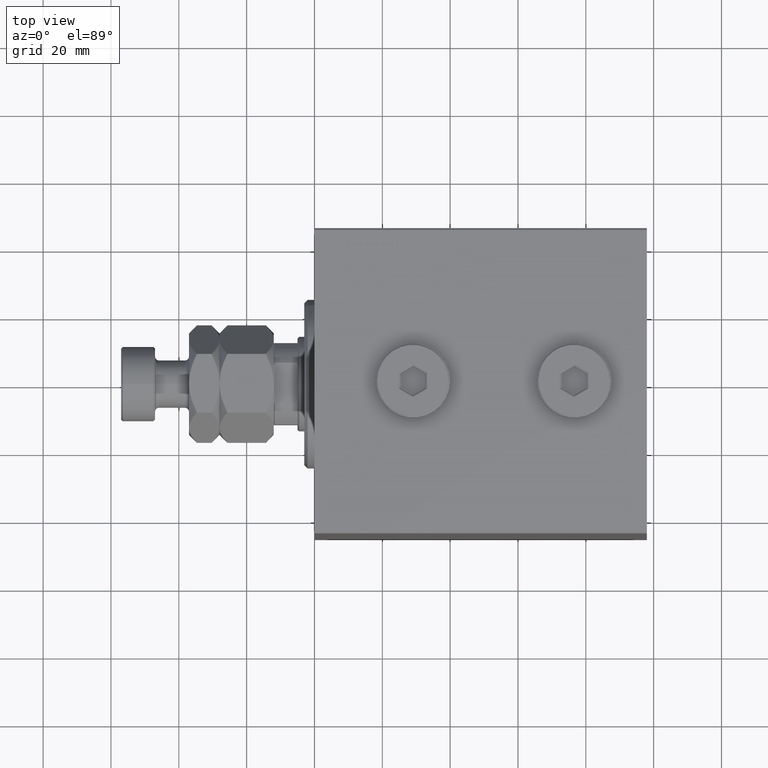
[diagram: clean part render]
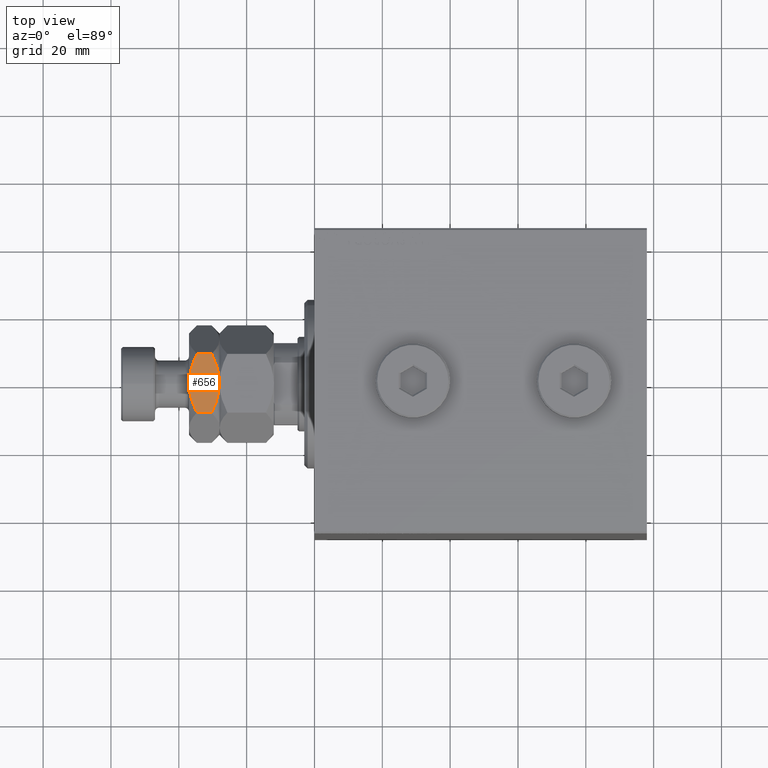
[diagram: same view with one face highlighted and labeled with its STEP entity id]
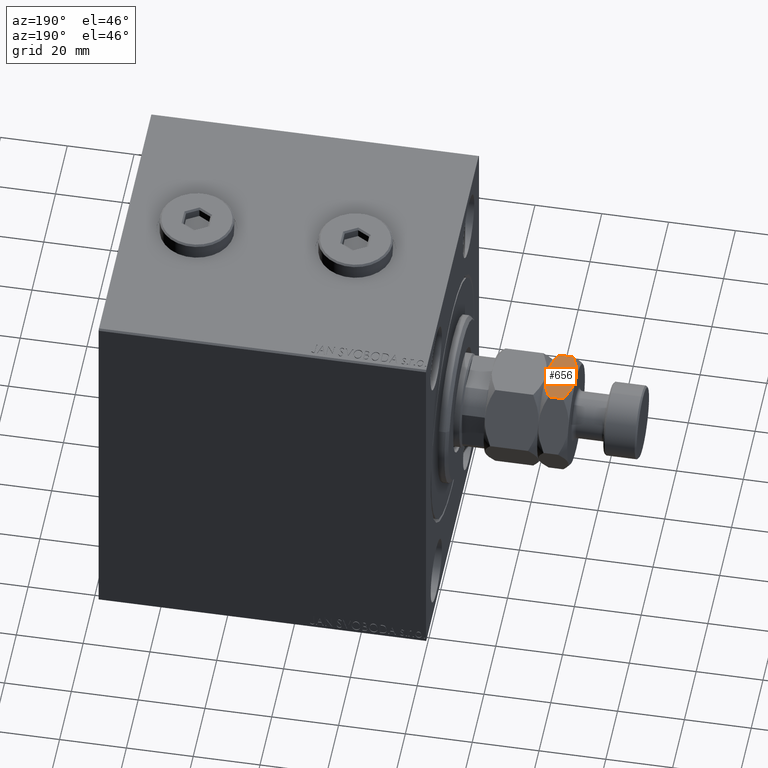
[diagram: same view with one face highlighted and labeled with its STEP entity id]
A machine part, top view. The second image highlights one B-rep face of the part: STEP entity #656.
A second angle (auxiliary view) of the same face is appended — the face is thin or edge-on in the first view.
In plain terms, the highlighted planar face has unit normal (-0, -0, -1).
Its self-contained STEP definition (entity closure, byte-faithful):
#614 = PLANE ( 'NONE',  #24984 ) ;
#656 = ADVANCED_FACE ( 'NONE', ( #22142 ), #614, .F. ) ;
#1524 = CARTESIAN_POINT ( 'NONE',  ( 14.99999999999999645, 3.737365789271271943, 24.55689843594664268 ) ) ;
#3028 = LINE ( 'NONE', #21013, #7926 ) ;
#4088 = CARTESIAN_POINT ( 'NONE',  ( 14.99999999999999645, 7.303107243978802288, 17.67096152142570986 ) ) ;
#4886 = CARTESIAN_POINT ( 'NONE',  ( 15.00000000000000178, -4.814853579356896063, 24.25000369044311199 ) ) ;
#5072 = CARTESIAN_POINT ( 'NONE',  ( 14.99999999999999822, 5.180699559534207133, 24.14562739175687867 ) ) ;
#5071 = CARTESIAN_POINT ( 'NONE',  ( 14.99999999999999822, -1.517610682399678002, 16.07187944091290888 ) ) ;
#5299 = CARTESIAN_POINT ( 'NONE',  ( 14.99999999999999645, -5.180699559534208021, 16.85437260824312844 ) ) ;
#5315 = ORIENTED_EDGE ( 'NONE', *, *, #14109, .F. ) ;
#6620 = EDGE_CURVE ( 'NONE', #27401, #22684, #17478, .T. ) ;
#7358 = DIRECTION ( 'NONE',  ( -0.000000000000000000, -0.000000000000000000, -1.000000000000000000 ) ) ;
#7926 = VECTOR ( 'NONE', #27649, 1000.000000000000000 ) ;
#8603 = CARTESIAN_POINT ( 'NONE',  ( 14.99999999999999645, 5.892768039091680343, 23.89692361009772625 ) ) ;
#8834 = CARTESIAN_POINT ( 'NONE',  ( 14.99999999999999822, 8.660254037844385522, 22.67949192431123961 ) ) ;
#10216 = CARTESIAN_POINT ( 'NONE',  ( 15.00000000000000178, -5.892768039091683008, 17.10307638990227730 ) ) ;
#11123 = CARTESIAN_POINT ( 'NONE',  ( 14.99999999999999645, 0.000000000000000000, 16.00000000000000000 ) ) ;
#11176 = CARTESIAN_POINT ( 'NONE',  ( 14.99999999999999467, 5.891098461327064051, 17.11186337375562871 ) ) ;
#11485 = DIRECTION ( 'NONE',  ( -1.000000000000000000, -1.001543065824773222E-16, 0.000000000000000000 ) ) ;
#12386 = CARTESIAN_POINT ( 'NONE',  ( 14.99999999999999645, 0.000000000000000000, 16.00000000000000000 ) ) ;
#14109 = EDGE_CURVE ( 'NONE', #37808, #27401, #34541, .T. ) ;
#14498 = CARTESIAN_POINT ( 'NONE',  ( 15.00000000000000000, 5.174827754835041205, 16.86398255753356423 ) ) ;
#14660 = VECTOR ( 'NONE', #7358, 1000.000000000000000 ) ;
#15184 = EDGE_CURVE ( 'NONE', #41671, #27601, #18680, .T. ) ;
#15537 = CARTESIAN_POINT ( 'NONE',  ( 14.99999999999999645, -7.303107243978799623, 23.32903847857429014 ) ) ;
#15721 = CARTESIAN_POINT ( 'NONE',  ( 14.99999999999999645, 1.502314598737159426E-15, 25.00000000000000000 ) ) ;
#15766 = CARTESIAN_POINT ( 'NONE',  ( 15.00000000000000000, -3.004852722955709154, 24.76509796378016404 ) ) ;
#17478 = B_SPLINE_CURVE_WITH_KNOTS ( 'NONE', 3,
 ( #15721, #37501, #30155, #26598, #19502, #41052, #1524, #5072, #8603, #30391, #41284, #8834 ),
 .UNSPECIFIED., .F., .F.,
 ( 4, 2, 2, 2, 2, 4 ),
 ( 0.03191542946226437472, 0.03304303448889991252, 0.03417063951553545031, 0.03642584956880652591, 0.03868105962207760845, 0.04093626967534868405 ),
 .UNSPECIFIED. ) ;
#18680 = B_SPLINE_CURVE_WITH_KNOTS ( 'NONE', 3,
 ( #12386, #22415, #36867, #5071, #26828, #41283, #23280, #5299, #10216, #24203, #46433, #45747 ),
 .UNSPECIFIED., .F., .F.,
 ( 4, 2, 2, 2, 2, 4 ),
 ( 0.03191542946226437472, 0.03304303448889991252, 0.03417063951553545031, 0.03642584956880652591, 0.03868105962207760151, 0.04093626967534867711 ),
 .UNSPECIFIED. ) ;
#19081 = CARTESIAN_POINT ( 'NONE',  ( 14.99999999999999822, -5.891098461327062275, 23.88813662624436773 ) ) ;
#19502 = CARTESIAN_POINT ( 'NONE',  ( 14.99999999999999467, 1.891887532498635061, 24.88562366702208095 ) ) ;
#19546 = CARTESIAN_POINT ( 'NONE',  ( 14.99999999999999822, -7.988341278889598662, 23.01544830378863438 ) ) ;
#19775 = CARTESIAN_POINT ( 'NONE',  ( 14.99999999999999112, -6.248143622294143107, 23.75390217982290864 ) ) ;
#21013 = CARTESIAN_POINT ( 'NONE',  ( 14.99999999999999822, -8.660254037844381969, 25.00000000000000000 ) ) ;
#22142 = FACE_OUTER_BOUND ( 'NONE', #41765, .T. ) ;
#22415 = CARTESIAN_POINT ( 'NONE',  ( 15.00000000000000178, -0.3804688789667639015, 16.00000000000000000 ) ) ;
#22684 = VERTEX_POINT ( 'NONE', #27433 ) ;
#23280 = CARTESIAN_POINT ( 'NONE',  ( 15.00000000000000000, -3.737365789271273275, 16.44310156405335732 ) ) ;
#23327 = CARTESIAN_POINT ( 'NONE',  ( 14.99999999999999822, -8.660254037844383745, 22.67949192431123961 ) ) ;
#23939 = EDGE_CURVE ( 'NONE', #22684, #27069, #40742, .T. ) ;
#24203 = CARTESIAN_POINT ( 'NONE',  ( 15.00000000000000000, -7.301375305910570823, 17.67016602839480299 ) ) ;
#24984 = AXIS2_PLACEMENT_3D ( 'NONE', #36586, #11485, #36833 ) ;
#25614 = CARTESIAN_POINT ( 'NONE',  ( 14.99999999999999467, 3.004852722955711819, 16.23490203621984307 ) ) ;
#26004 = ORIENTED_EDGE ( 'NONE', *, *, #15184, .F. ) ;
#26598 = CARTESIAN_POINT ( 'NONE',  ( 14.99999999999999467, 1.517610682399677557, 24.92812055908709112 ) ) ;
#26819 = ORIENTED_EDGE ( 'NONE', *, *, #30524, .T. ) ;
#26828 = CARTESIAN_POINT ( 'NONE',  ( 15.00000000000000000, -1.891887532498635061, 16.11437633297792615 ) ) ;
#27069 = VERTEX_POINT ( 'NONE', #35713 ) ;
#27111 = CARTESIAN_POINT ( 'NONE',  ( 14.99999999999999645, -1.524122972781246865, 25.00000000000000000 ) ) ;
#27401 = VERTEX_POINT ( 'NONE', #39510 ) ;
#27433 = CARTESIAN_POINT ( 'NONE',  ( 14.99999999999999822, 8.660254037844385522, 22.67949192431123961 ) ) ;
#27601 = VERTEX_POINT ( 'NONE', #34518 ) ;
#27649 = DIRECTION ( 'NONE',  ( -0.000000000000000000, -0.000000000000000000, -1.000000000000000000 ) ) ;
#28925 = CARTESIAN_POINT ( 'NONE',  ( 14.99999999999999822, 4.814853579356897839, 16.74999630955690577 ) ) ;
#29165 = CARTESIAN_POINT ( 'NONE',  ( 14.99999999999999645, 7.988341278889603991, 17.98455169621137983 ) ) ;
#29410 = CARTESIAN_POINT ( 'NONE',  ( 14.99999999999999645, 8.660254037844387298, 18.32050807568876394 ) ) ;
#30155 = CARTESIAN_POINT ( 'NONE',  ( 14.99999999999999645, 0.7628644205843058135, 24.98532818133299571 ) ) ;
#30391 = CARTESIAN_POINT ( 'NONE',  ( 14.99999999999999822, 7.301375305910570823, 23.32983397160520411 ) ) ;
#30524 = EDGE_CURVE ( 'NONE', #37808, #27601, #3028, .T. ) ;
#33400 = CARTESIAN_POINT ( 'NONE',  ( 14.99999999999999645, 8.660254037844385522, 25.00000000000000000 ) ) ;
#34518 = CARTESIAN_POINT ( 'NONE',  ( 15.00000000000000000, -8.660254037844381969, 18.32050807568876394 ) ) ;
#34541 = B_SPLINE_CURVE_WITH_KNOTS ( 'NONE', 3,
 ( #23327, #19546, #15537, #19775, #19081, #40864, #4886, #15766, #27111, #44625 ),
 .UNSPECIFIED., .F., .F.,
 ( 4, 2, 2, 2, 4 ),
 ( 0.02288126756189531180, 0.02513980803698757580, 0.02626907827453370953, 0.02739834851207984326, 0.03191542946226437472 ),
 .UNSPECIFIED. ) ;
#35713 = CARTESIAN_POINT ( 'NONE',  ( 14.99999999999999645, 8.660254037844387298, 18.32050807568876394 ) ) ;
#36586 = CARTESIAN_POINT ( 'NONE',  ( 14.99999999999999822, -8.660254037844381969, 25.00000000000000000 ) ) ;
#36833 = DIRECTION ( 'NONE',  ( 1.001543065824773222E-16, -1.000000000000000000, 0.000000000000000000 ) ) ;
#36867 = CARTESIAN_POINT ( 'NONE',  ( 14.99999999999999822, -0.7628644205843061465, 16.01467181866700784 ) ) ;
#36968 = ORIENTED_EDGE ( 'NONE', *, *, #6620, .F. ) ;
#37501 = CARTESIAN_POINT ( 'NONE',  ( 14.99999999999999822, 0.3804688789667641791, 25.00000000000000000 ) ) ;
#37808 = VERTEX_POINT ( 'NONE', #42062 ) ;
#39510 = CARTESIAN_POINT ( 'NONE',  ( 14.99999999999999645, 1.502314598737159426E-15, 25.00000000000000000 ) ) ;
#40249 = ORIENTED_EDGE ( 'NONE', *, *, #23939, .F. ) ;
#40742 = LINE ( 'NONE', #33400, #14660 ) ;
#40864 = CARTESIAN_POINT ( 'NONE',  ( 15.00000000000000000, -5.174827754835039428, 24.13601744246643932 ) ) ;
#41052 = CARTESIAN_POINT ( 'NONE',  ( 14.99999999999999822, 3.006083412830564683, 24.71938903440270607 ) ) ;
#41284 = CARTESIAN_POINT ( 'NONE',  ( 14.99999999999999645, 7.988323794068006301, 23.01545704619942256 ) ) ;
#41283 = CARTESIAN_POINT ( 'NONE',  ( 15.00000000000000178, -3.006083412830564239, 16.28061096559729393 ) ) ;
#41671 = VERTEX_POINT ( 'NONE', #11123 ) ;
#41765 = EDGE_LOOP ( 'NONE', ( #43521, #40249, #36968, #5315, #26819, #26004 ) ) ;
#42062 = CARTESIAN_POINT ( 'NONE',  ( 14.99999999999999822, -8.660254037844383745, 22.67949192431123961 ) ) ;
#43369 = CARTESIAN_POINT ( 'NONE',  ( 14.99999999999999645, 0.000000000000000000, 16.00000000000000000 ) ) ;
#43521 = ORIENTED_EDGE ( 'NONE', *, *, #46010, .F. ) ;
#43605 = CARTESIAN_POINT ( 'NONE',  ( 14.99999999999999112, 6.248143622294145771, 17.24609782017707715 ) ) ;
#43837 = CARTESIAN_POINT ( 'NONE',  ( 14.99999999999999645, 1.524122972781247309, 15.99999999999999645 ) ) ;
#44625 = CARTESIAN_POINT ( 'NONE',  ( 14.99999999999999645, 1.502314598737159426E-15, 25.00000000000000000 ) ) ;
#44670 = B_SPLINE_CURVE_WITH_KNOTS ( 'NONE', 3,
 ( #29410, #29165, #4088, #43605, #11176, #14498, #28925, #25614, #43837, #43369 ),
 .UNSPECIFIED., .F., .F.,
 ( 4, 2, 2, 2, 4 ),
 ( 0.02288126756189531180, 0.02513980803698757580, 0.02626907827453370953, 0.02739834851207984326, 0.03191542946226437472 ),
 .UNSPECIFIED. ) ;
#45747 = CARTESIAN_POINT ( 'NONE',  ( 15.00000000000000000, -8.660254037844381969, 18.32050807568876394 ) ) ;
#46010 = EDGE_CURVE ( 'NONE', #27069, #41671, #44670, .T. ) ;
#46433 = CARTESIAN_POINT ( 'NONE',  ( 15.00000000000000000, -7.988323794068004524, 17.98454295380057744 ) ) ;